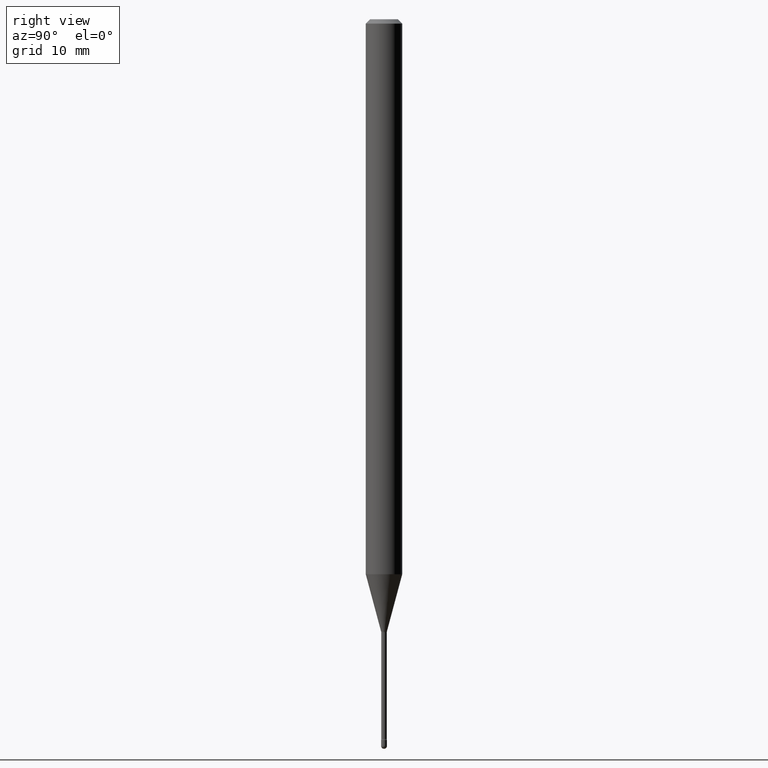
[diagram: clean part render]
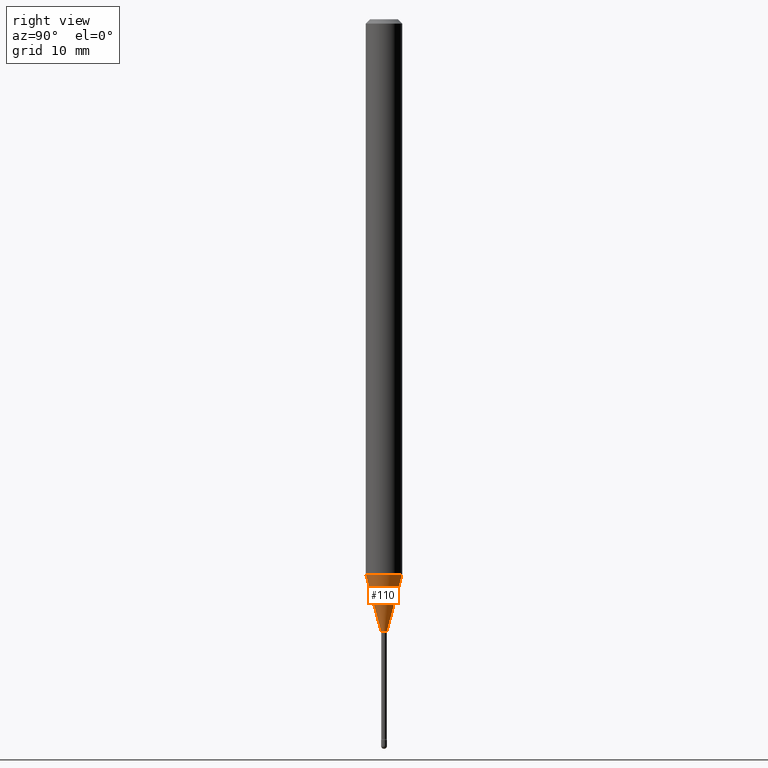
[diagram: same view with one face highlighted and labeled with its STEP entity id]
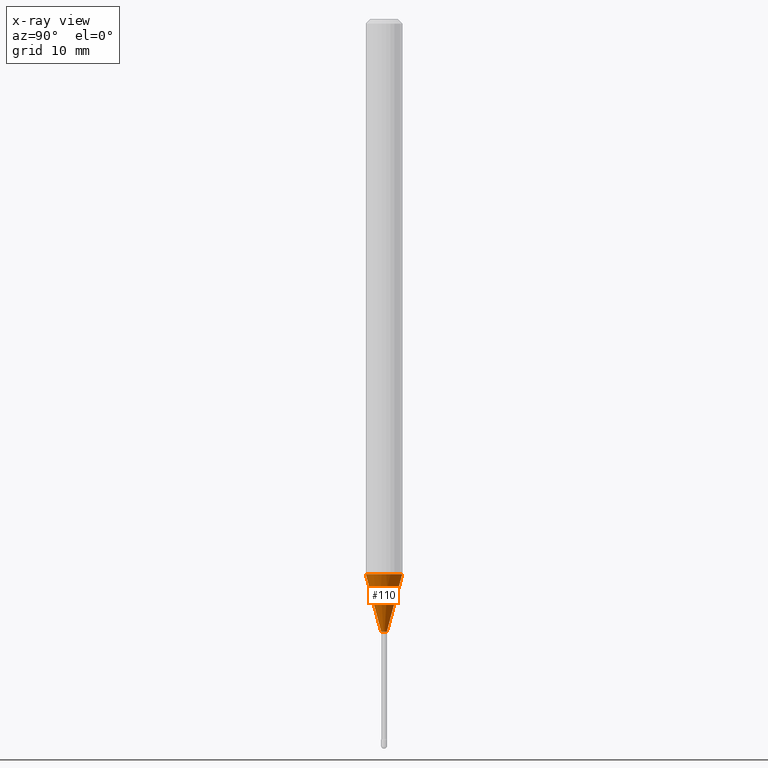
[diagram: x-ray of the same camera — body ghosted, the highlighted face saturated]
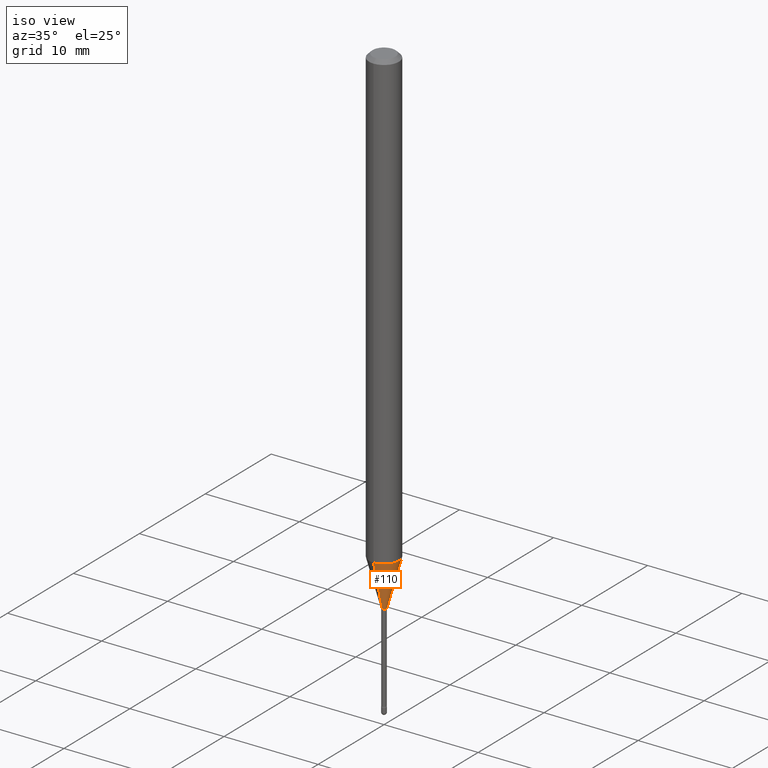
[diagram: same view with one face highlighted and labeled with its STEP entity id]
A machine part, right view. The second image highlights one B-rep face of the part: STEP entity #110.
The next image is the same camera in x-ray: the body ghosted, the highlighted face saturated — about 0% of this face is hidden behind the body in this view.
A second angle (iso view) of the same face is appended — the face is thin or edge-on in the first view.
In plain terms, the highlighted conical surface has half-angle 15 deg.
Its self-contained STEP definition (entity closure, byte-faithful):
#6 = CARTESIAN_POINT ( 'NONE',  ( -6.920892941964612771E-17, -0.009911112605671302742, -2.098092501787272912 ) ) ;
#7 = ORIENTED_EDGE ( 'NONE', *, *, #71, .T. ) ;
#16 = DIRECTION ( 'NONE',  ( -1.807323732225326589E-15, -0.2588190451025176864, 0.9659258262890690894 ) ) ;
#56 = CARTESIAN_POINT ( 'NONE',  ( 5.130967262463350308E-29, -7.325239593270444515E-15, -2.098092501787272912 ) ) ;
#71 = EDGE_CURVE ( 'NONE', #403, #187, #303, .T. ) ;
#91 = LINE ( 'NONE', #315, #256 ) ;
#95 = FACE_OUTER_BOUND ( 'NONE', #532, .T. ) ;
#104 = DIRECTION ( 'NONE',  ( 1.839019923739596765E-15, 0.2588190451025244587, 0.9659258262890673130 ) ) ;
#110 = ADVANCED_FACE ( 'NONE', ( #95 ), #348, .T. ) ;
#121 = CIRCLE ( 'NONE', #467, 0.06250000000000000000 ) ;
#128 = CARTESIAN_POINT ( 'NONE',  ( 5.130967262463350308E-29, -7.325239593270444515E-15, -2.098092501787272912 ) ) ;
#139 = DIRECTION ( 'NONE',  ( -6.982962677686265922E-15, -1.000000000000000000, 4.370956789862821150E-15 ) ) ;
#161 = VERTEX_POINT ( 'NONE', #245 ) ;
#179 = ORIENTED_EDGE ( 'NONE', *, *, #387, .T. ) ;
#184 = DIRECTION ( 'NONE',  ( -6.982962677686265922E-15, -1.000000000000000000, 0.000000000000000000 ) ) ;
#187 = VERTEX_POINT ( 'NONE', #455 ) ;
#224 = DIRECTION ( 'NONE',  ( -2.445539106637340355E-29, 3.491380664594336784E-15, 1.000000000000000000 ) ) ;
#228 = LINE ( 'NONE', #277, #427 ) ;
#245 = CARTESIAN_POINT ( 'NONE',  ( -4.364351673553452252E-16, -0.06250000000000664746, -1.901828102118092501 ) ) ;
#256 = VECTOR ( 'NONE', #104, 39.37007874015748143 ) ;
#277 = CARTESIAN_POINT ( 'NONE',  ( -6.920892941964612771E-17, -0.009911112605671302742, -2.098092501787272912 ) ) ;
#303 = CIRCLE ( 'NONE', #383, 0.009911112605663977004 ) ;
#315 = CARTESIAN_POINT ( 'NONE',  ( 7.042269065260026074E-17, 0.009911112605656653002, -2.098092501787272912 ) ) ;
#348 = CONICAL_SURFACE ( 'NONE', #513, 0.009911112605663977004, 0.2617993877991497409 ) ;
#363 = ORIENTED_EDGE ( 'NONE', *, *, #478, .F. ) ;
#383 = AXIS2_PLACEMENT_3D ( 'NONE', #128, #399, #477 ) ;
#387 = EDGE_CURVE ( 'NONE', #187, #521, #91, .T. ) ;
#399 = DIRECTION ( 'NONE',  ( -2.445539106637340355E-29, 3.491380664594336784E-15, 1.000000000000000000 ) ) ;
#403 = VERTEX_POINT ( 'NONE', #6 ) ;
#427 = VECTOR ( 'NONE', #16, 39.37007874015748854 ) ;
#431 = EDGE_CURVE ( 'NONE', #161, #521, #121, .T. ) ;
#433 = CARTESIAN_POINT ( 'NONE',  ( 4.440892098501090604E-16, 0.06249999999999336642, -1.901828102118093167 ) ) ;
#455 = CARTESIAN_POINT ( 'NONE',  ( 2.572559502513548023E-16, 0.009911112605656653002, -2.098092501787272912 ) ) ;
#467 = AXIS2_PLACEMENT_3D ( 'NONE', #528, #224, #139 ) ;
#477 = DIRECTION ( 'NONE',  ( -6.982962677686265922E-15, -1.000000000000000000, 0.000000000000000000 ) ) ;
#478 = EDGE_CURVE ( 'NONE', #403, #161, #228, .T. ) ;
#499 = ORIENTED_EDGE ( 'NONE', *, *, #431, .F. ) ;
#513 = AXIS2_PLACEMENT_3D ( 'NONE', #56, #536, #184 ) ;
#521 = VERTEX_POINT ( 'NONE', #433 ) ;
#528 = CARTESIAN_POINT ( 'NONE',  ( 4.650994997831669518E-29, -6.640005863117252053E-15, -1.901828102118092945 ) ) ;
#532 = EDGE_LOOP ( 'NONE', ( #7, #179, #499, #363 ) ) ;
#536 = DIRECTION ( 'NONE',  ( -2.445539106637340355E-29, 3.491380664594336784E-15, 1.000000000000000000 ) ) ;